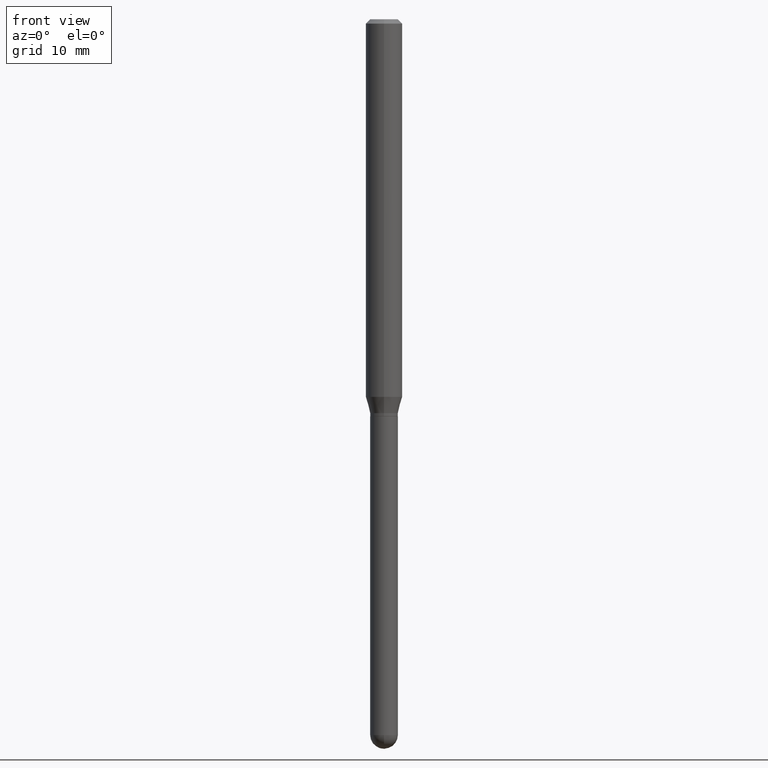
[diagram: clean part render]
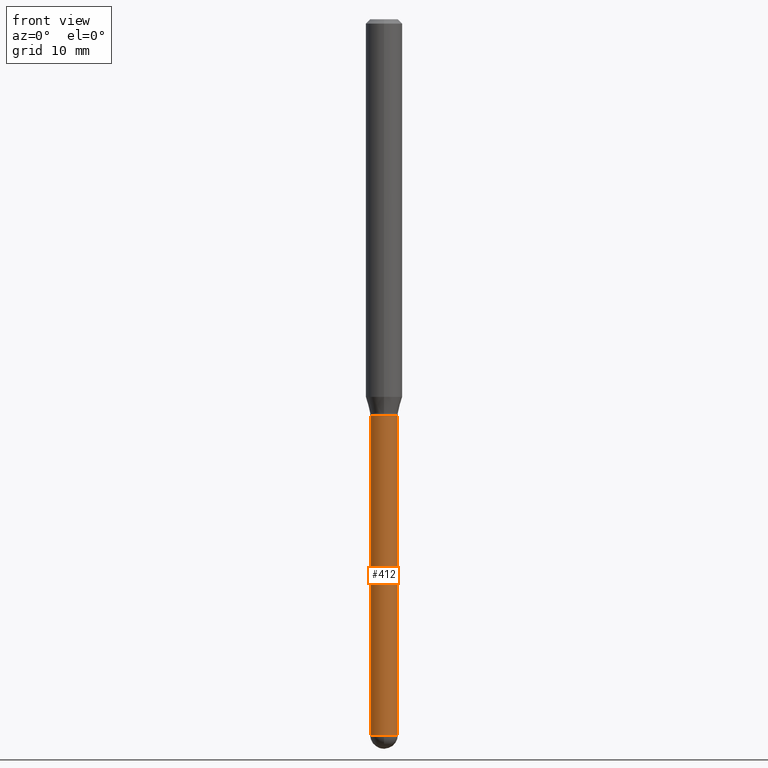
[diagram: same view with one face highlighted and labeled with its STEP entity id]
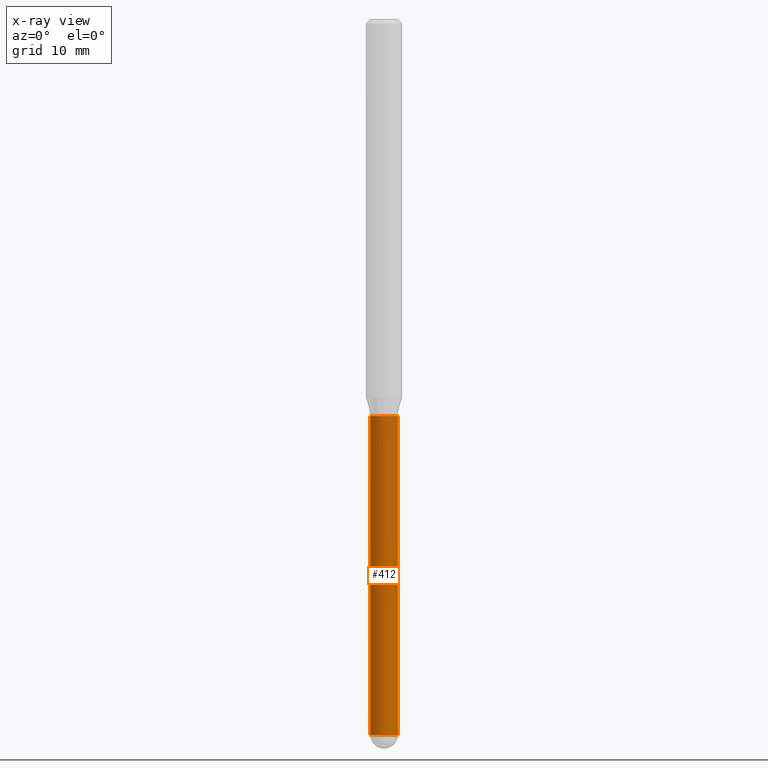
[diagram: x-ray of the same camera — body ghosted, the highlighted face saturated]
A machine part, front view. The second image highlights one B-rep face of the part: STEP entity #412.
The next image is the same camera in x-ray: the body ghosted, the highlighted face saturated — about 0% of this face is hidden behind the body in this view.
In plain terms, the highlighted cylindrical surface (edge-blend (fillet) strip) has radius 1.2065 mm, axis along (-0, 0, 1).
Its self-contained STEP definition (entity closure, byte-faithful):
#3 = VERTEX_POINT ( 'NONE', #150 ) ;
#9 = EDGE_CURVE ( 'NONE', #300, #450, #330, .T. ) ;
#65 = CARTESIAN_POINT ( 'NONE',  ( 5.997512247169047773E-29, -8.562857983512815004E-15, -2.452500000000000124 ) ) ;
#70 = EDGE_CURVE ( 'NONE', #450, #139, #380, .T. ) ;
#77 = CARTESIAN_POINT ( 'NONE',  ( 0.000000000000000000, 0.000000000000000000, 0.000000000000000000 ) ) ;
#84 = CARTESIAN_POINT ( 'NONE',  ( 0.04749999999999999362, -5.080105348016776545E-15, -1.360000000000000320 ) ) ;
#85 = DIRECTION ( 'NONE',  ( 1.000000000000000000, -6.982962677686266711E-15, 4.876176775795934672E-29 ) ) ;
#91 = CIRCLE ( 'NONE', #385, 0.04749999999999999362 ) ;
#95 = DIRECTION ( 'NONE',  ( -2.445468806185136877E-29, 3.491481338843145188E-15, 1.000000000000000000 ) ) ;
#100 = VECTOR ( 'NONE', #95, 39.37007874015748143 ) ;
#139 = VERTEX_POINT ( 'NONE', #84 ) ;
#147 = CIRCLE ( 'NONE', #489, 0.04750000000000000749 ) ;
#149 = DIRECTION ( 'NONE',  ( -2.445468806185136877E-29, 3.491481338843145188E-15, 1.000000000000000000 ) ) ;
#150 = CARTESIAN_POINT ( 'NONE',  ( -0.04749999999999999362, -6.318128502683699525E-15, -1.360000000000000320 ) ) ;
#182 = VECTOR ( 'NONE', #149, 39.37007874015748143 ) ;
#194 = ORIENTED_EDGE ( 'NONE', *, *, #70, .T. ) ;
#197 = DIRECTION ( 'NONE',  ( -2.445468806185136597E-29, 3.491481338843145583E-15, 1.000000000000000000 ) ) ;
#214 = CYLINDRICAL_SURFACE ( 'NONE', #250, 0.04750000000000000749 ) ;
#242 = CARTESIAN_POINT ( 'NONE',  ( -0.04750000000000000749, -6.318128502683699525E-15, -2.452500000000000124 ) ) ;
#250 = AXIS2_PLACEMENT_3D ( 'NONE', #77, #320, #85 ) ;
#251 = FACE_OUTER_BOUND ( 'NONE', #347, .T. ) ;
#287 = CARTESIAN_POINT ( 'NONE',  ( 0.04750000000000000749, -6.987327029359844530E-15, -2.452500000000000124 ) ) ;
#300 = VERTEX_POINT ( 'NONE', #419 ) ;
#313 = CARTESIAN_POINT ( 'NONE',  ( 5.997512247169047773E-29, -8.562857983512815004E-15, -2.452500000000000124 ) ) ;
#316 = DIRECTION ( 'NONE',  ( -2.445468806185136597E-29, 3.491481338843145583E-15, 1.000000000000000000 ) ) ;
#320 = DIRECTION ( 'NONE',  ( -2.445468806185136597E-29, 3.491481338843145583E-15, 1.000000000000000000 ) ) ;
#330 = CIRCLE ( 'NONE', #421, 0.04750000000000000749 ) ;
#343 = ORIENTED_EDGE ( 'NONE', *, *, #454, .F. ) ;
#346 = EDGE_CURVE ( 'NONE', #487, #300, #147, .T. ) ;
#347 = EDGE_LOOP ( 'NONE', ( #486, #506, #443, #194, #343 ) ) ;
#349 = CARTESIAN_POINT ( 'NONE',  ( 0.04750000000000000749, -3.316907271900977082E-16, 2.316183968503069432E-30 ) ) ;
#350 = LINE ( 'NONE', #499, #182 ) ;
#353 = DIRECTION ( 'NONE',  ( 1.000000000000000000, -6.982962677686280910E-15, 0.000000000000000000 ) ) ;
#365 = CARTESIAN_POINT ( 'NONE',  ( 3.325837576411786624E-29, -4.748414620826679034E-15, -1.360000000000000320 ) ) ;
#380 = LINE ( 'NONE', #349, #100 ) ;
#384 = DIRECTION ( 'NONE',  ( 1.000000000000000000, -6.982962677686280910E-15, 0.000000000000000000 ) ) ;
#385 = AXIS2_PLACEMENT_3D ( 'NONE', #365, #316, #468 ) ;
#387 = EDGE_CURVE ( 'NONE', #487, #3, #350, .T. ) ;
#412 = ADVANCED_FACE ( 'NONE', ( #251 ), #214, .T. ) ;
#419 = CARTESIAN_POINT ( 'NONE',  ( -3.375077994859875895E-16, -0.04750000000000855621, -2.452499999999999680 ) ) ;
#421 = AXIS2_PLACEMENT_3D ( 'NONE', #65, #197, #353 ) ;
#443 = ORIENTED_EDGE ( 'NONE', *, *, #9, .T. ) ;
#450 = VERTEX_POINT ( 'NONE', #287 ) ;
#454 = EDGE_CURVE ( 'NONE', #3, #139, #91, .T. ) ;
#466 = DIRECTION ( 'NONE',  ( -2.445468806185136597E-29, 3.491481338843145583E-15, 1.000000000000000000 ) ) ;
#468 = DIRECTION ( 'NONE',  ( 1.000000000000000000, -6.982962677686261977E-15, 0.000000000000000000 ) ) ;
#486 = ORIENTED_EDGE ( 'NONE', *, *, #387, .F. ) ;
#487 = VERTEX_POINT ( 'NONE', #242 ) ;
#489 = AXIS2_PLACEMENT_3D ( 'NONE', #313, #466, #384 ) ;
#499 = CARTESIAN_POINT ( 'NONE',  ( -0.04750000000000000749, 3.375077994860476415E-16, -2.336494167871080260E-30 ) ) ;
#506 = ORIENTED_EDGE ( 'NONE', *, *, #346, .T. ) ;